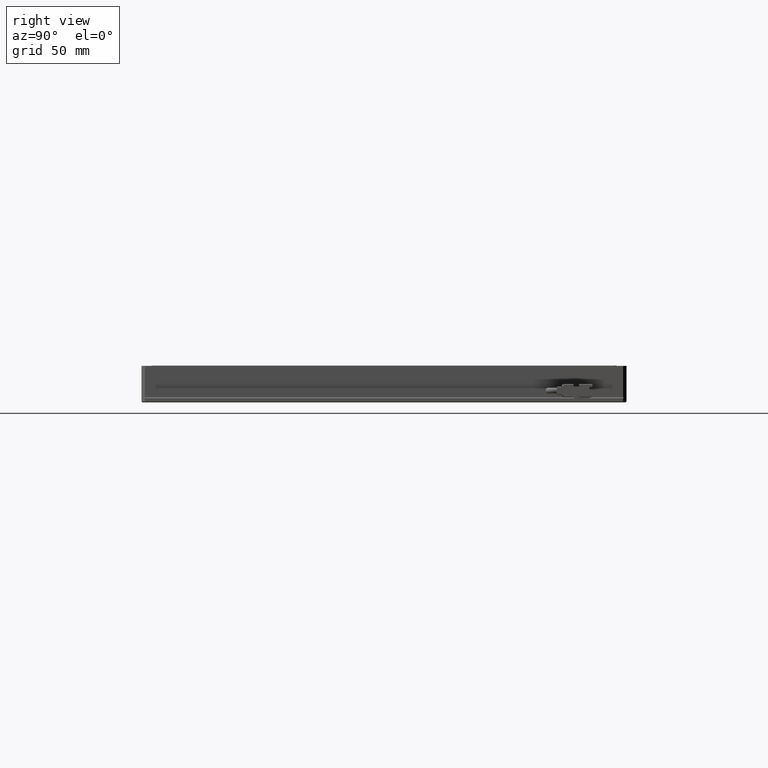
[diagram: clean part render]
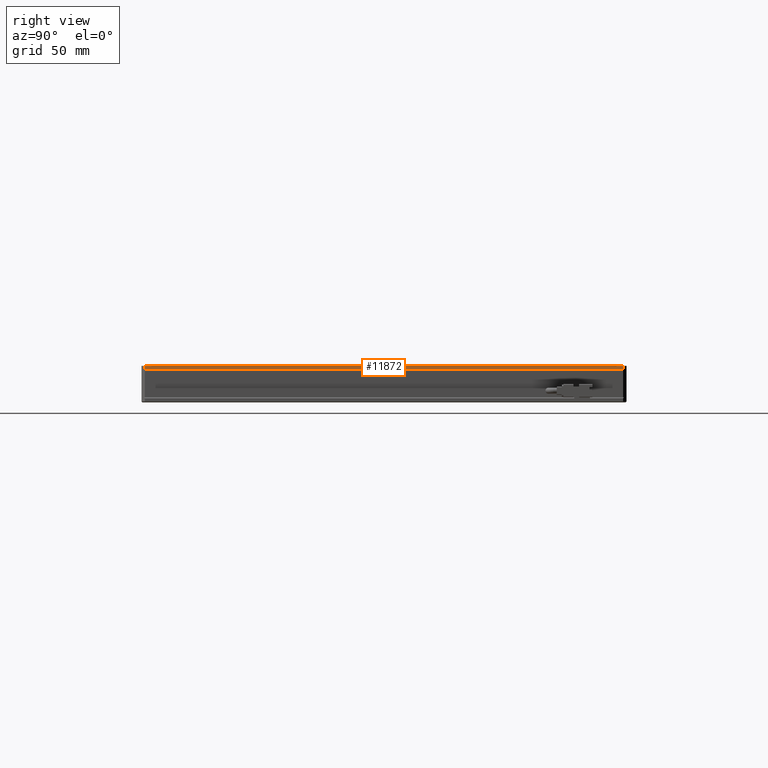
[diagram: same view with one face highlighted and labeled with its STEP entity id]
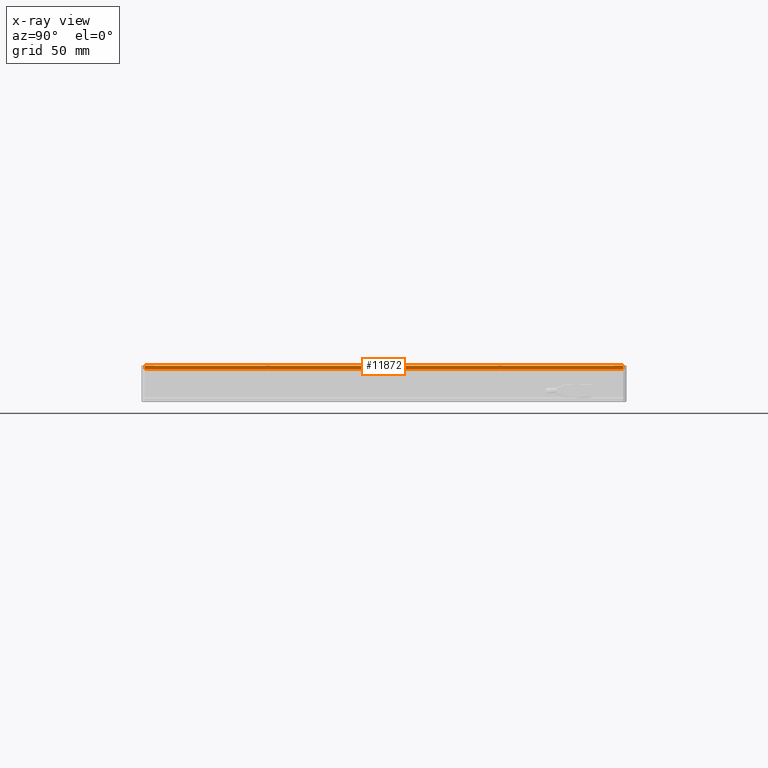
[diagram: x-ray of the same camera — body ghosted, the highlighted face saturated]
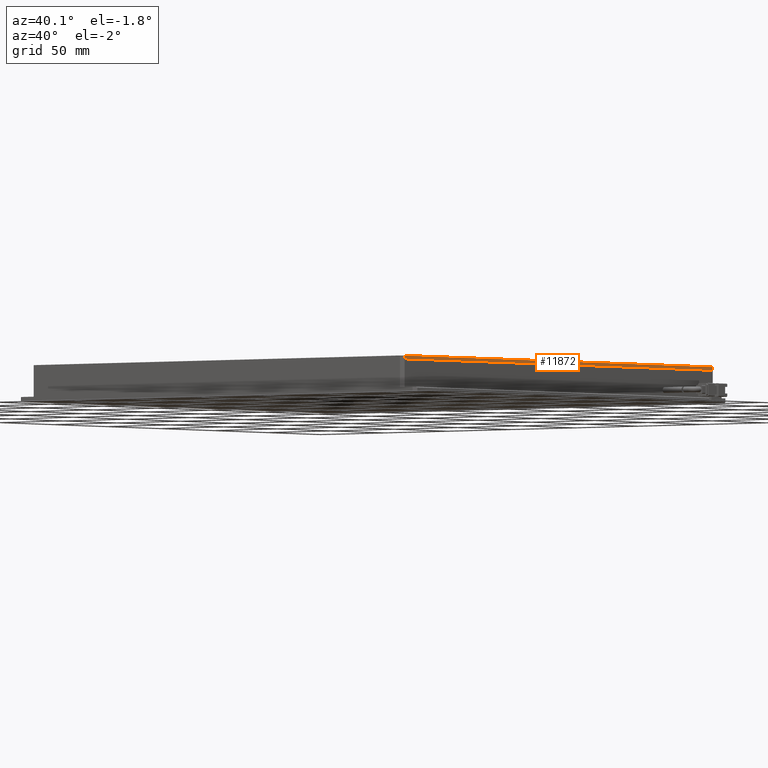
[diagram: same view with one face highlighted and labeled with its STEP entity id]
A machine part, right view. The second image highlights one B-rep face of the part: STEP entity #11872.
The next image is the same camera in x-ray: the body ghosted, the highlighted face saturated — about 0% of this face is hidden behind the body in this view.
A second angle (auxiliary view) of the same face is appended — the face is thin or edge-on in the first view.
In plain terms, the highlighted planar face has unit normal (-1, 0, 0).
Its self-contained STEP definition (entity closure, byte-faithful):
#332 = DIRECTION ( 'NONE',  ( 0.0000000000000000000, 1.000000000000000000, 0.0000000000000000000 ) ) ;
#1254 = CARTESIAN_POINT ( 'NONE',  ( 178.9193228736581300, 157.2698045692266100, 10.49999999997180600 ) ) ;
#1743 = CARTESIAN_POINT ( 'NONE',  ( 178.9193228736581300, 159.2698045692265800, 10.49999999997180600 ) ) ;
#2113 = ORIENTED_EDGE ( 'NONE', *, *, #26966, .F. ) ;
#2484 = VECTOR ( 'NONE', #332, 1000.000000000000000 ) ;
#3880 = DIRECTION ( 'NONE',  ( 0.0000000000000000000, 0.0000000000000000000, 1.000000000000000000 ) ) ;
#4872 = DIRECTION ( 'NONE',  ( 0.0000000000000000000, 0.0000000000000000000, 1.000000000000000000 ) ) ;
#4929 = DIRECTION ( 'NONE',  ( 0.0000000000000000000, 1.000000000000000000, 0.0000000000000000000 ) ) ;
#5237 = ORIENTED_EDGE ( 'NONE', *, *, #13692, .T. ) ;
#5283 = VERTEX_POINT ( 'NONE', #5292 ) ;
#5292 = CARTESIAN_POINT ( 'NONE',  ( 178.9193228736581000, -130.7301954307734200, 10.49999999997180600 ) ) ;
#9286 = EDGE_CURVE ( 'NONE', #20323, #5283, #21188, .T. ) ;
#9391 = AXIS2_PLACEMENT_3D ( 'NONE', #1743, #16792, #3880 ) ;
#11872 = ADVANCED_FACE ( 'NONE', ( #20929 ), #20995, .F. ) ;
#13692 = EDGE_CURVE ( 'NONE', #26791, #21710, #18006, .T. ) ;
#14385 = EDGE_CURVE ( 'NONE', #20323, #26791, #15251, .T. ) ;
#15251 = LINE ( 'NONE', #19994, #17259 ) ;
#15344 = CARTESIAN_POINT ( 'NONE',  ( 178.9193228736581000, -130.7301954307734200, 8.499999999971805700 ) ) ;
#15472 = CARTESIAN_POINT ( 'NONE',  ( 178.9193228736581300, 159.2698045692265800, 10.49999999997180600 ) ) ;
#15662 = EDGE_LOOP ( 'NONE', ( #2113, #27180, #22646, #5237 ) ) ;
#16792 = DIRECTION ( 'NONE',  ( -1.000000000000000000, 0.0000000000000000000, 0.0000000000000000000 ) ) ;
#17259 = VECTOR ( 'NONE', #4929, 1000.000000000000000 ) ;
#17410 = DIRECTION ( 'NONE',  ( 0.0000000000000000000, 0.0000000000000000000, 1.000000000000000000 ) ) ;
#17694 = CARTESIAN_POINT ( 'NONE',  ( 178.9193228736581900, 157.2698045692265800, 10.49999999997180600 ) ) ;
#18006 = LINE ( 'NONE', #17694, #23659 ) ;
#19994 = CARTESIAN_POINT ( 'NONE',  ( 178.9193228736580700, -132.7301954307733900, 8.499999999971805700 ) ) ;
#20323 = VERTEX_POINT ( 'NONE', #15344 ) ;
#20929 = FACE_OUTER_BOUND ( 'NONE', #15662, .T. ) ;
#20995 = PLANE ( 'NONE',  #9391 ) ;
#21188 = LINE ( 'NONE', #25800, #26185 ) ;
#21267 = CARTESIAN_POINT ( 'NONE',  ( 178.9193228736581600, 157.2698045692266400, 8.499999999971805700 ) ) ;
#21710 = VERTEX_POINT ( 'NONE', #1254 ) ;
#22646 = ORIENTED_EDGE ( 'NONE', *, *, #14385, .T. ) ;
#23659 = VECTOR ( 'NONE', #4872, 1000.000000000000000 ) ;
#24640 = LINE ( 'NONE', #15472, #2484 ) ;
#25800 = CARTESIAN_POINT ( 'NONE',  ( 178.9193228736581300, -130.7301954307734200, 10.49999999997180600 ) ) ;
#26185 = VECTOR ( 'NONE', #17410, 1000.000000000000000 ) ;
#26791 = VERTEX_POINT ( 'NONE', #21267 ) ;
#26966 = EDGE_CURVE ( 'NONE', #5283, #21710, #24640, .T. ) ;
#27180 = ORIENTED_EDGE ( 'NONE', *, *, #9286, .F. ) ;